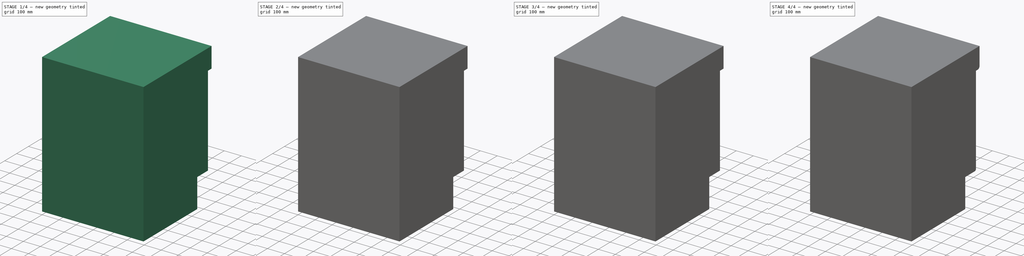
[diagram: build sequence overview — one tinted view per stage of 4, left to right]
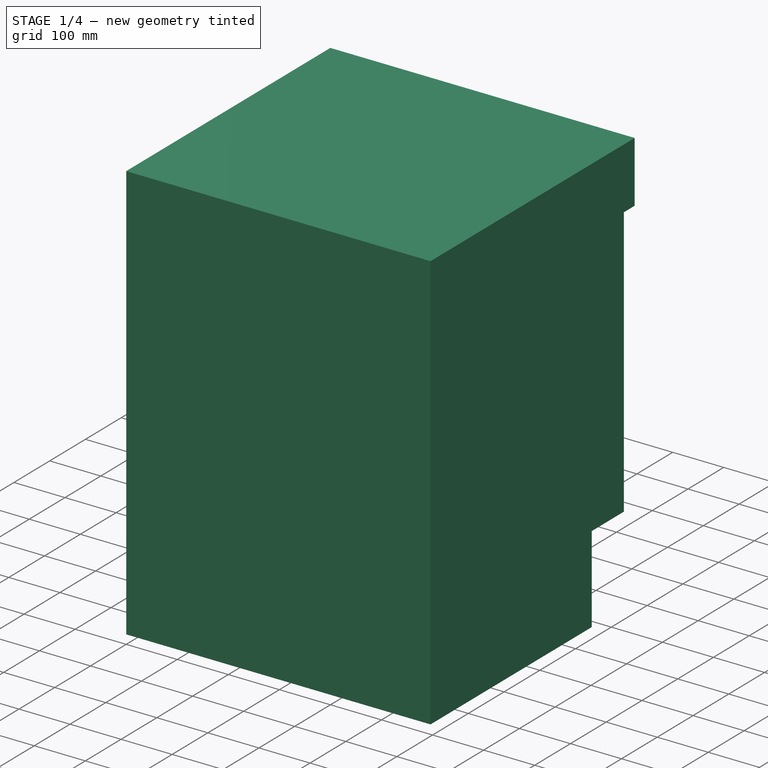
[diagram: stage 1 of 4 — iso view after this stage's code; geometry added in this stage tinted green]
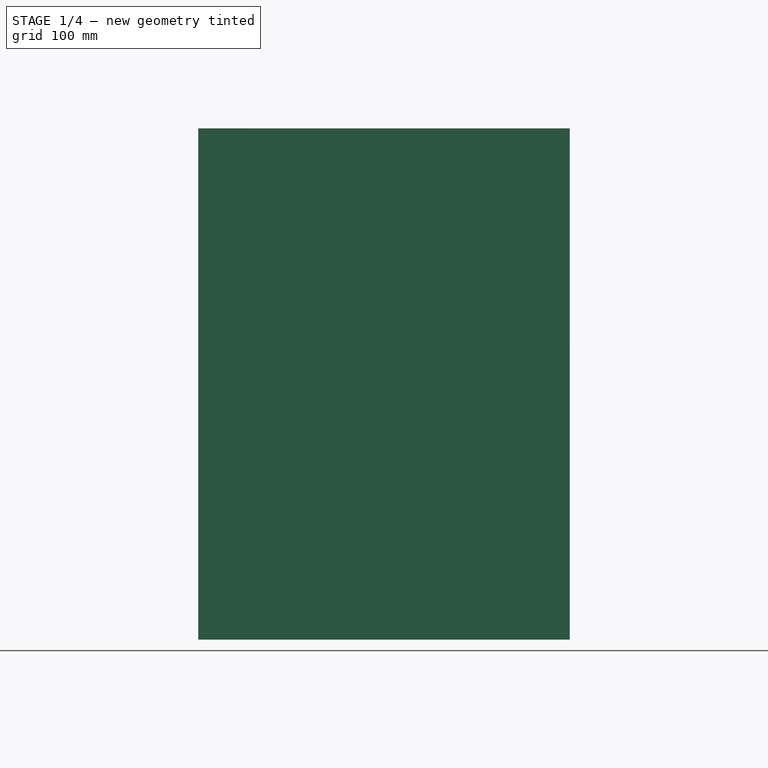
[diagram: stage 1 of 4 — front view after this stage's code; geometry added in this stage tinted green]
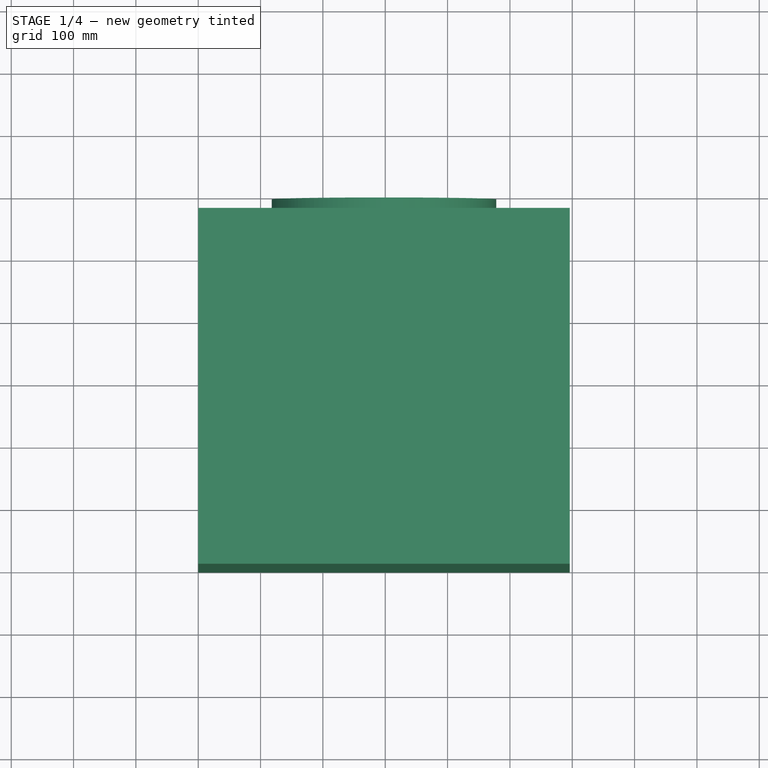
[diagram: stage 1 of 4 — top view after this stage's code; geometry added in this stage tinted green]
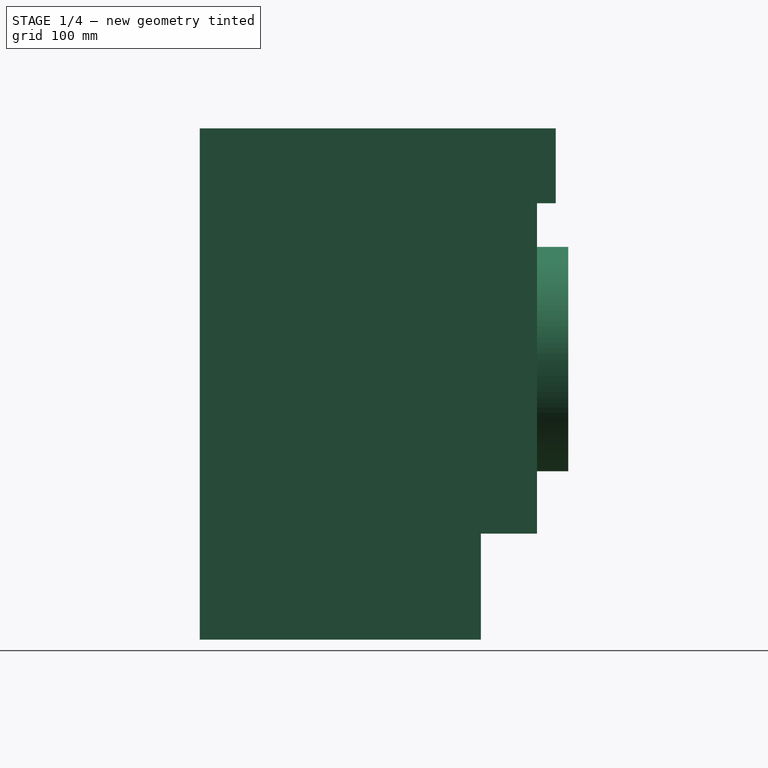
[diagram: stage 1 of 4 — right view after this stage's code; geometry added in this stage tinted green]
FCSTD DOCUMENT  (FreeCAD 0.18R16131 (Git))
Label: laundryMachine_600mm
License: All rights reserved
LicenseURL: http://en.wikipedia.org/wiki/All_rights_reserved
objects: Sketcher::SketchObject×7, PartDesign::Fillet×7, PartDesign::Pad×4, PartDesign::Pocket×3, PartDesign::Body×1
note: 29 computed .brp shape members not serialized (recipe doc carries the construction recipe); baked Part::Feature solids carry a one-line shape summary decoded from their .brp

FEATURE [Sketcher::SketchObject] Sketch
  MapMode = 5
  Support = -> [XY_Plane]
  sketch-geometry (4):
    g0: LineSegment StartX=0 StartY=0 StartZ=0 EndX=596 EndY=0 EndZ=0
    g1: LineSegment StartX=596 StartY=0 StartZ=0 EndX=596 EndY=541 EndZ=0
    g2: LineSegment StartX=596 StartY=541 StartZ=0 EndX=0 EndY=541 EndZ=0
    g3: LineSegment StartX=0 StartY=541 StartZ=0 EndX=0 EndY=0 EndZ=0
  constraints (11):
    c: Coincident(g0,g1)
    c: Coincident(g1,g2)
    c: Coincident(g2,g3)
    c: Coincident(g3,g0)
    c: Horizontal(g0)
    c: Horizontal(g2)
    c: Vertical(g1)
    c: Vertical(g3)
    c: Coincident(g0,g-1)
    c: DistanceY(g1,g1) = 541
    c: DistanceX(g0,g0) = 596
FEATURE [PartDesign::Pad] Pad
  Length = 820
  Length2 = 100
  Profile = -> Sketch
  Type = 0
FEATURE [Sketcher::SketchObject] Sketch001
  MapMode = 5
  Placement = pos=(0,541,0) rot=(0,0.707107,0.707107;3.14159rad)
  Support = -> [Pad]
  sketch-geometry (4):
    g0: LineSegment StartX=0 StartY=0 StartZ=0 EndX=-596 EndY=0 EndZ=0
    g1: LineSegment StartX=-596 StartY=0 StartZ=0 EndX=-596 EndY=170 EndZ=0
    g2: LineSegment StartX=-596 StartY=170 StartZ=0 EndX=0 EndY=170 EndZ=0
    g3: LineSegment StartX=0 StartY=170 StartZ=0 EndX=0 EndY=0 EndZ=0
  constraints (11):
    c: Coincident(g0,g1)
    c: Coincident(g1,g2)
    c: Coincident(g2,g3)
    c: Coincident(g3,g0)
    c: Horizontal(g0)
    c: Horizontal(g2)
    c: Vertical(g1)
    c: Vertical(g3)
    c: Coincident(g0,g-1)
    c: DistanceX(g0,g0) = 596
    c: DistanceY(g1,g1) = 170
FEATURE [PartDesign::Pocket] Pocket
  BaseFeature = -> Pad
  Length = 90
  Length2 = 100
  Profile = -> Sketch001
  Type = 0
FEATURE [Sketcher::SketchObject] Sketch002
  MapMode = 5
  Placement = pos=(0,541,0) rot=(0,0.707107,0.707107;3.14159rad)
  Support = -> [Pocket]
  sketch-geometry (1):
    g0: Circle CenterX=-298 CenterY=450 CenterZ=0 NormalX=0 NormalY=0 NormalZ=1 AngleXU=0 Radius=180
  constraints (3):
    c: Radius(g0) = 180
    c: DistanceX(g0) = -298
    c: DistanceY(g0) = 450
FEATURE [PartDesign::Pad] Pad001
  BaseFeature = -> Pocket
  Length = 50
  Length2 = 100
  Profile = -> Sketch002
  Type = 0
FEATURE [Sketcher::SketchObject] Sketch003
  MapMode = 5
  Placement = pos=(0,541,0) rot=(0,0.707107,0.707107;3.14159rad)
  Support = -> [Pad001]
  sketch-geometry (4):
    g0: LineSegment StartX=-596 StartY=820 StartZ=0 EndX=0 EndY=820 EndZ=0
    g1: LineSegment StartX=0 StartY=820 StartZ=0 EndX=0 EndY=700 EndZ=0
    g2: LineSegment StartX=0 StartY=700 StartZ=0 EndX=-596 EndY=700 EndZ=0
    g3: LineSegment StartX=-596 StartY=700 StartZ=0 EndX=-596 EndY=820 EndZ=0
  constraints (12):
    c: Coincident(g0,g1)
    c: Coincident(g1,g2)
    c: Coincident(g2,g3)
    c: Coincident(g3,g0)
    c: Horizontal(g0)
    c: Horizontal(g2)
    c: Vertical(g1)
    c: Vertical(g3)
    c: DistanceX(g2,g2) = 596
    c: DistanceY(g1,g1) = 120
    c: DistanceX(g1) = 0
    c: DistanceY(g1) = 700
FEATURE [PartDesign::Pad] Pad002
  BaseFeature = -> Pad001
  Length = 30
  Length2 = 100
  Profile = -> Sketch003
  Type = 0
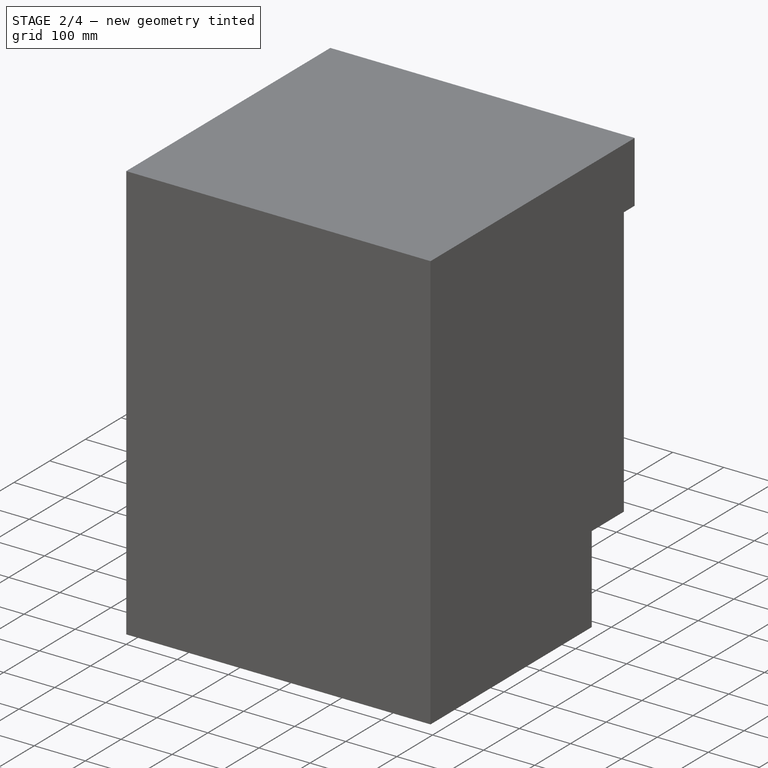
[diagram: stage 2 of 4 — iso view after this stage's code; geometry added in this stage tinted green]
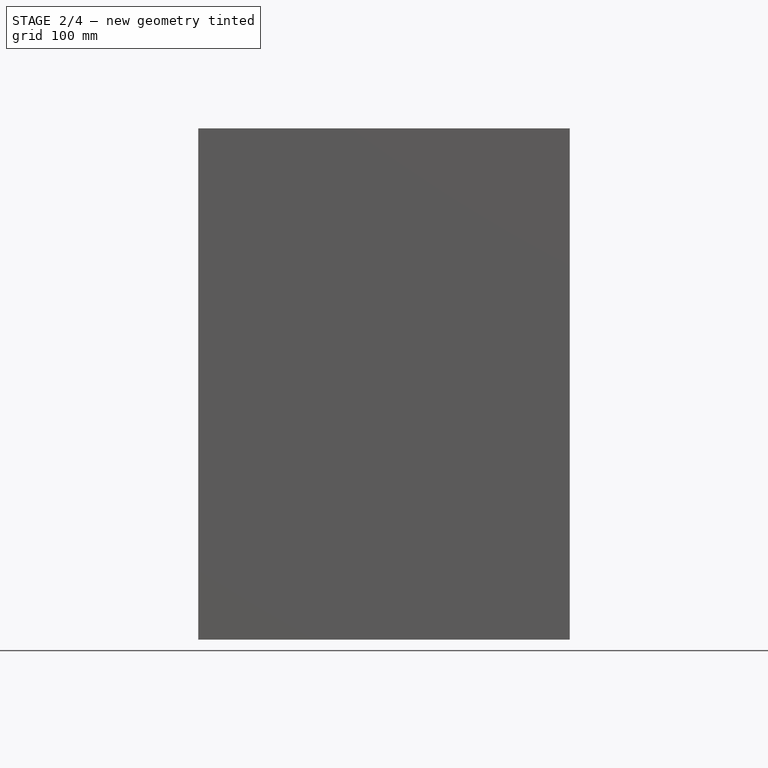
[diagram: stage 2 of 4 — front view after this stage's code; geometry added in this stage tinted green]
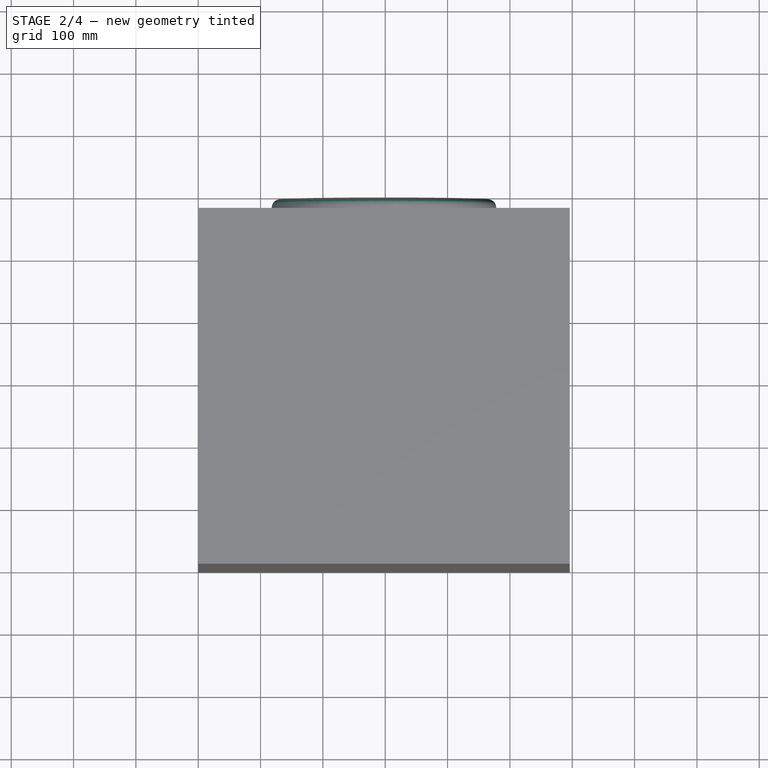
[diagram: stage 2 of 4 — top view after this stage's code; geometry added in this stage tinted green]
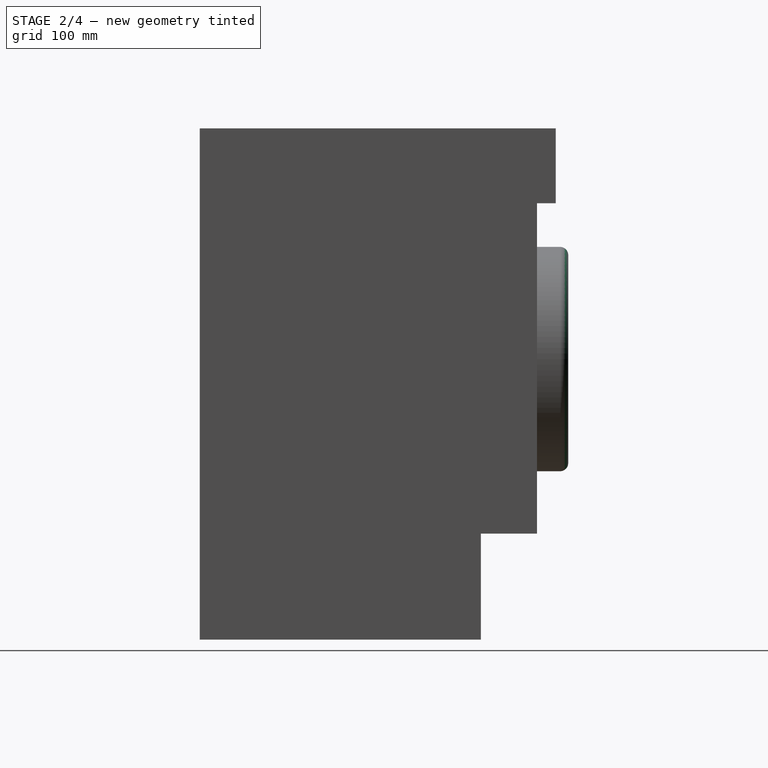
[diagram: stage 2 of 4 — right view after this stage's code; geometry added in this stage tinted green]
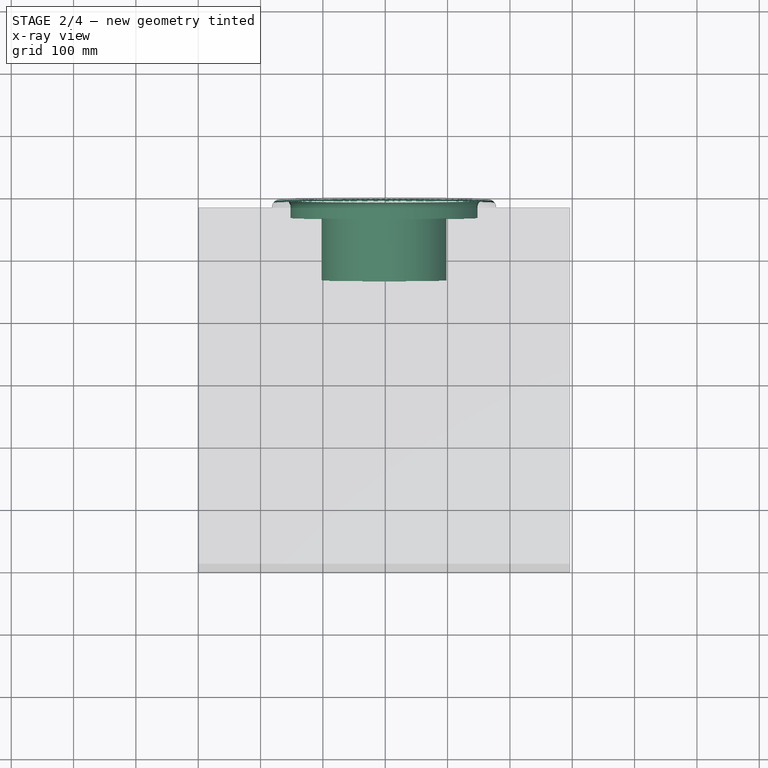
[diagram: stage 2 of 4 — x-ray composite at the top view; earlier geometry ghosted, this stage's added geometry solid]
FEATURE [Sketcher::SketchObject] Sketch004
  MapMode = 5
  Placement = pos=(0,591,0) rot=(0,0.707107,0.707107;3.14159rad)
  Support = -> [Pad002]
  sketch-geometry (1):
    g0: Circle CenterX=-298 CenterY=450 CenterZ=0 NormalX=0 NormalY=0 NormalZ=1 AngleXU=0 Radius=150
  constraints (3):
    c: Radius(g0) = 150
    c: DistanceX(g0) = -298
    c: DistanceY(g0) = 450
FEATURE [PartDesign::Pocket] Pocket001
  BaseFeature = -> Pad002
  Length = 30
  Length2 = 100
  Profile = -> Sketch004
  Type = 0
FEATURE [PartDesign::Fillet] Fillet
  Base = -> Pocket001 [Face15]
  BaseFeature = -> Pocket001
  Radius = 13
FEATURE [Sketcher::SketchObject] Sketch005
  MapMode = 5
  Placement = pos=(0,561,0) rot=(0,0.707107,0.707107;3.14159rad)
  Support = -> [Fillet]
  sketch-geometry (1):
    g0: Circle CenterX=-298 CenterY=450 CenterZ=0 NormalX=0 NormalY=0 NormalZ=1 AngleXU=0 Radius=100
  constraints (3):
    c: Radius(g0) = 100
    c: DistanceX(g0) = -298
    c: DistanceY(g0) = 450
FEATURE [PartDesign::Pocket] Pocket002
  BaseFeature = -> Fillet
  Length = 100
  Length2 = 100
  Profile = -> Sketch005
  Type = 0
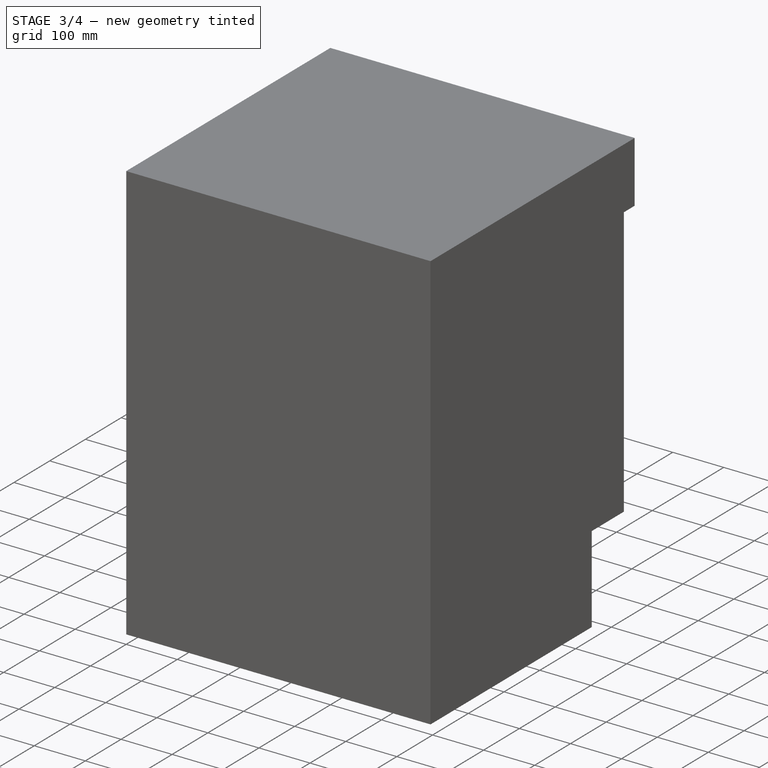
[diagram: stage 3 of 4 — iso view after this stage's code; geometry added in this stage tinted green]
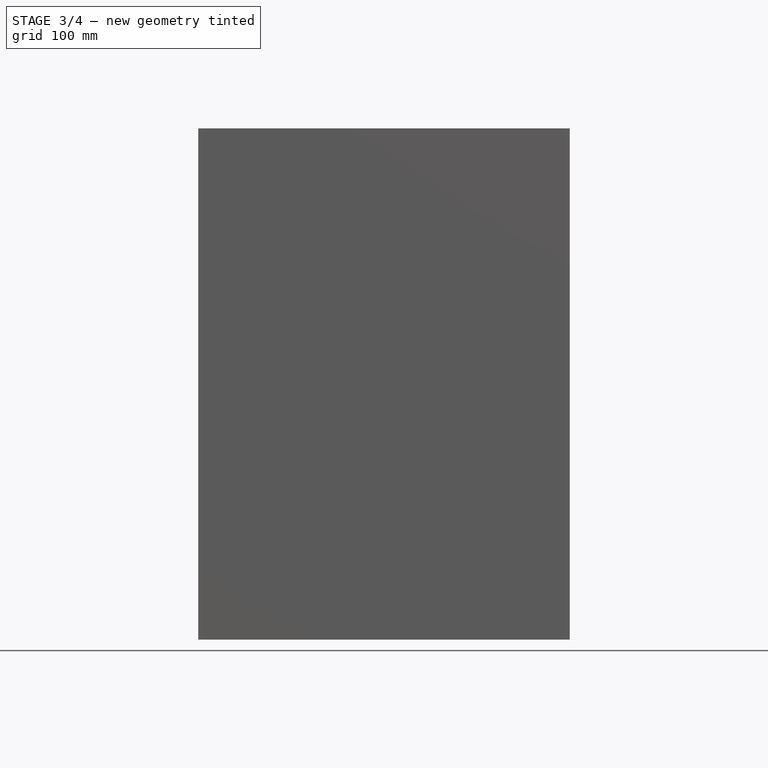
[diagram: stage 3 of 4 — front view after this stage's code; geometry added in this stage tinted green]
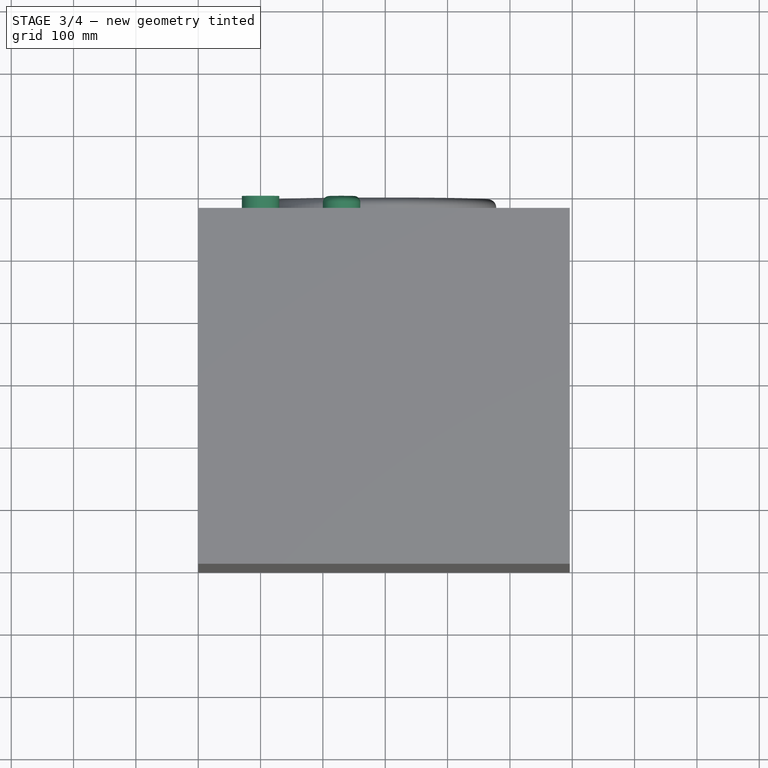
[diagram: stage 3 of 4 — top view after this stage's code; geometry added in this stage tinted green]
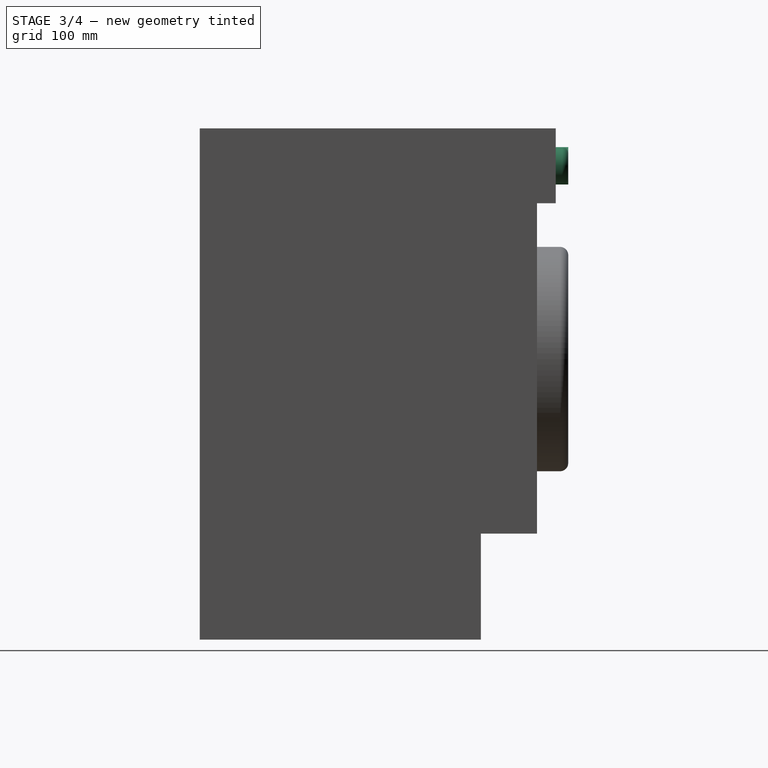
[diagram: stage 3 of 4 — right view after this stage's code; geometry added in this stage tinted green]
FEATURE [PartDesign::Fillet] Fillet001
  Base = -> Pocket002 [Edge40]
  BaseFeature = -> Pocket002
  Radius = 35
FEATURE [Sketcher::SketchObject] Sketch006
  MapMode = 5
  Placement = pos=(0,571,-5.424e-13) rot=(0,0.707107,0.707107;3.14159rad)
  Support = -> [Fillet001]
  sketch-geometry (2):
    g0: Circle CenterX=-100 CenterY=760 CenterZ=0 NormalX=0 NormalY=0 NormalZ=1 AngleXU=0 Radius=30
    g1: Circle CenterX=-230 CenterY=760 CenterZ=0 NormalX=0 NormalY=0 NormalZ=1 AngleXU=0 Radius=30
  constraints (6):
    c: Radius(g0) = 30
    c: DistanceX(g0) = -100
    c: DistanceY(g0) = 760
    c: Equal(g1,g0)
    c: DistanceY(g1) = 760
    c: DistanceX(g1) = -230
FEATURE [PartDesign::Pad] Pad003
  BaseFeature = -> Fillet001
  Length = 20
  Length2 = 100
  Profile = -> Sketch006
  Type = 0
FEATURE [PartDesign::Fillet] Fillet002
  Base = -> Pad003 [Edge48]
  BaseFeature = -> Pad003
  Radius = 10
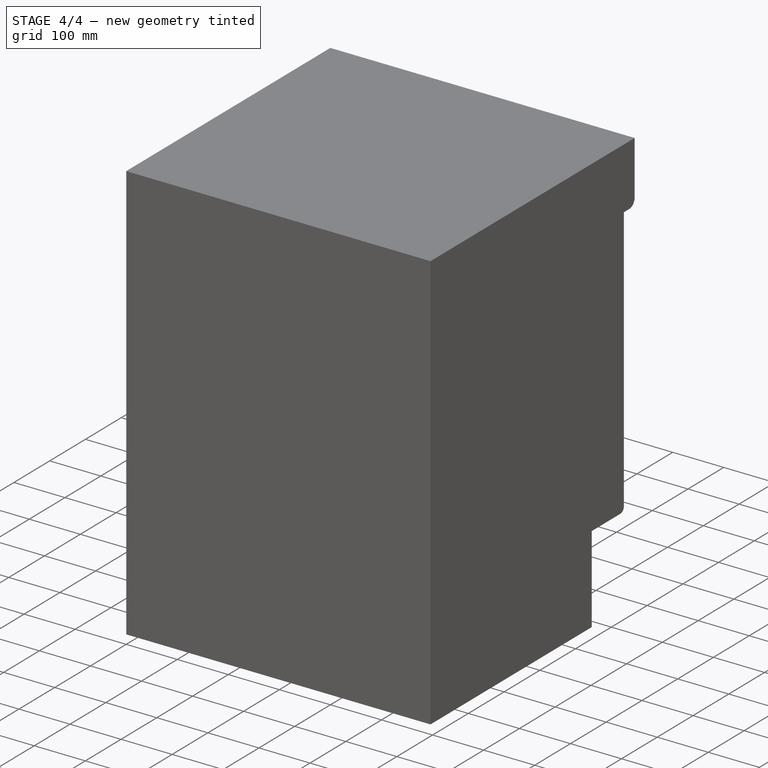
[diagram: stage 4 of 4 — iso view after this stage's code; geometry added in this stage tinted green]
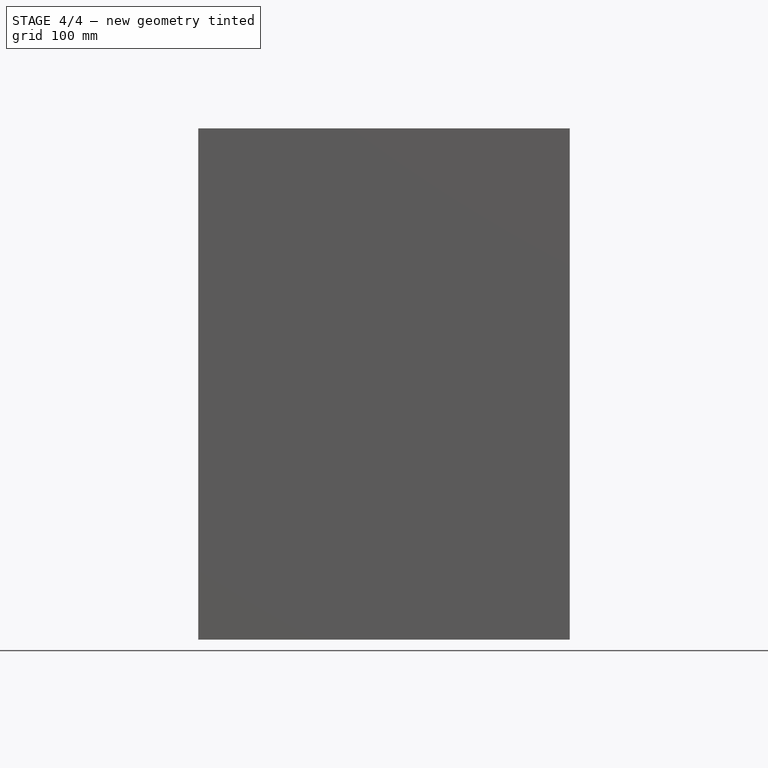
[diagram: stage 4 of 4 — front view after this stage's code; geometry added in this stage tinted green]
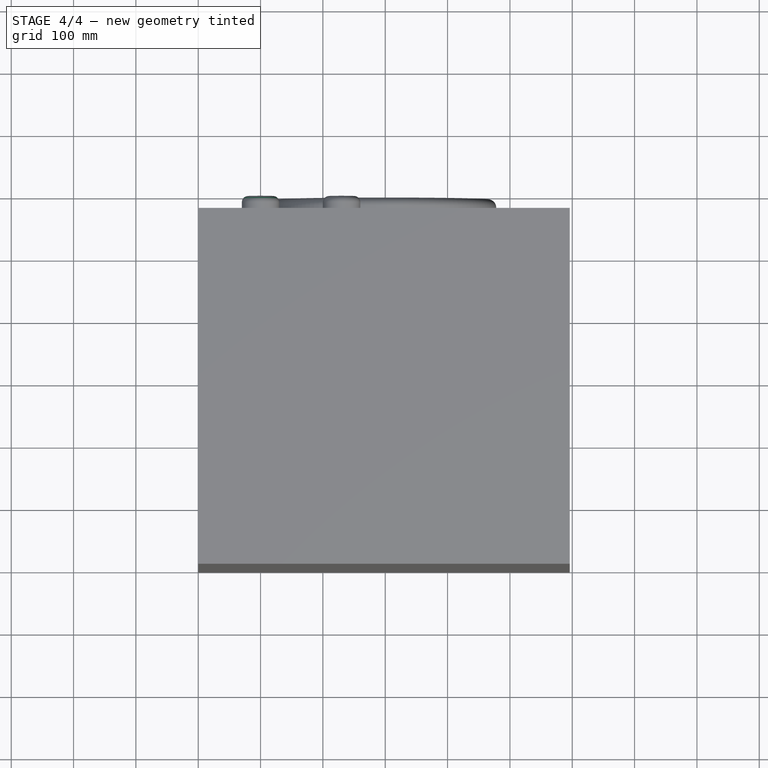
[diagram: stage 4 of 4 — top view after this stage's code; geometry added in this stage tinted green]
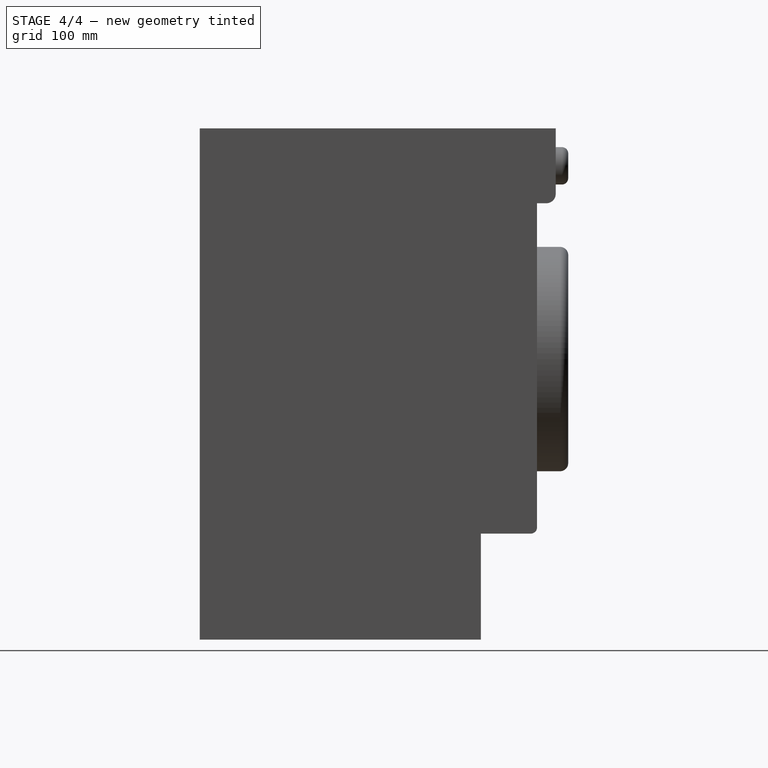
[diagram: stage 4 of 4 — right view after this stage's code; geometry added in this stage tinted green]
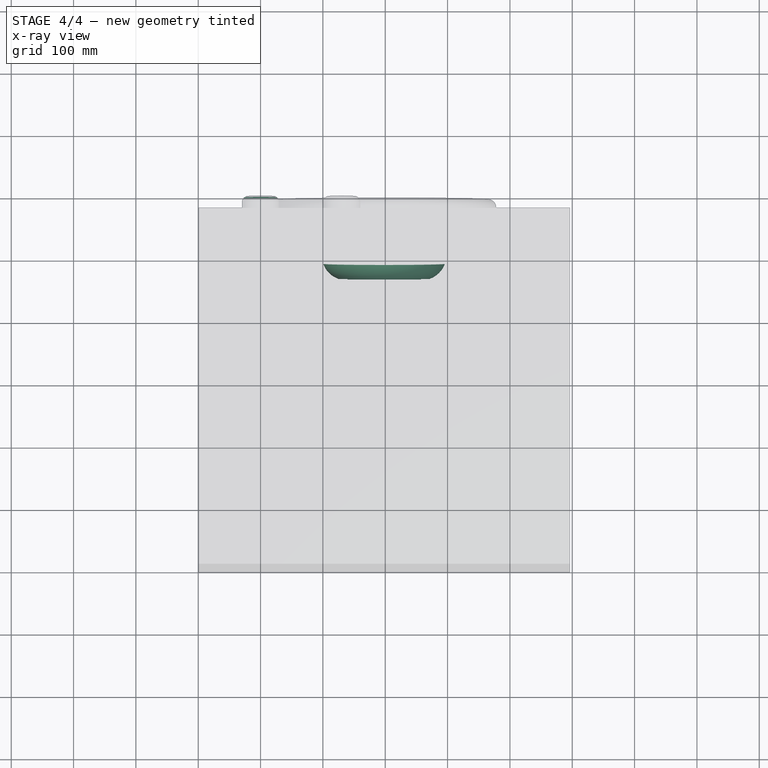
[diagram: stage 4 of 4 — x-ray composite at the top view; earlier geometry ghosted, this stage's added geometry solid]
FEATURE [PartDesign::Fillet] Fillet003
  Base = -> Fillet002 [Edge20]
  BaseFeature = -> Fillet002
  Radius = 10
FEATURE [PartDesign::Fillet] Fillet004
  Base = -> Fillet003 [Edge9]
  BaseFeature = -> Fillet003
  Radius = 15
FEATURE [PartDesign::Fillet] Fillet005
  Base = -> Fillet004 [Face29]
  BaseFeature = -> Fillet004
  Radius = 40
FEATURE [PartDesign::Fillet] Fillet006
  Base = -> Fillet005 [Edge18]
  BaseFeature = -> Fillet005
  Radius = 10
FEATURE [PartDesign::Body] Body  label="LaundryMachine_600mm"
  Group = -> [Sketch,Pad,Sketch001,Pocket,Sketch002,Pad001,Sketch003,Pad002,Sketch004,Pocket001,Fillet,Sketch005,Pocket002,Fillet001,Sketch006,Pad003,Fillet002,Fillet003,Fillet004,Fillet005,Fillet006]
  Origin = -> Origin
  Tip = -> Fillet006
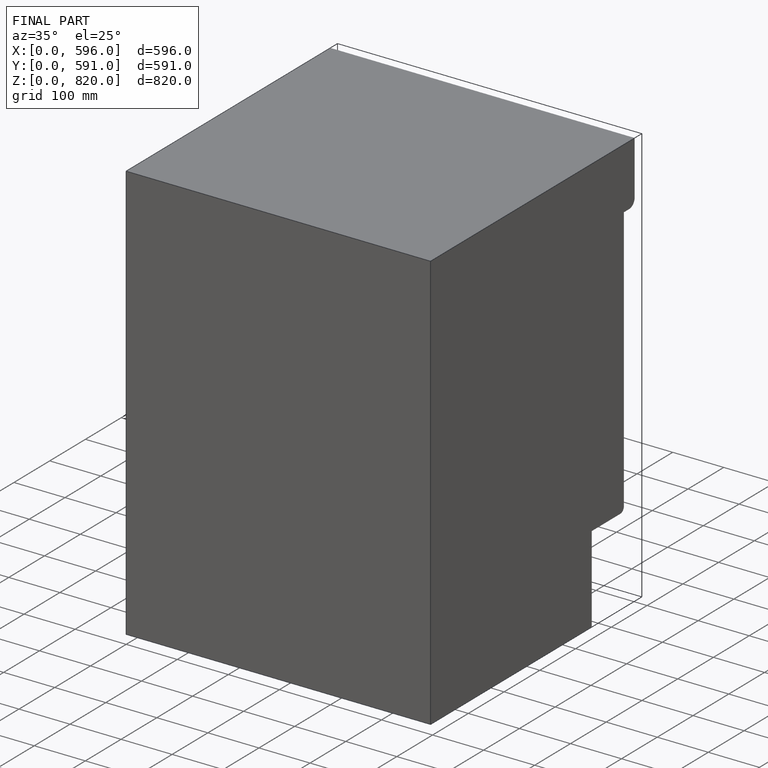
[diagram: finished part — iso view with bounding-box wireframe]
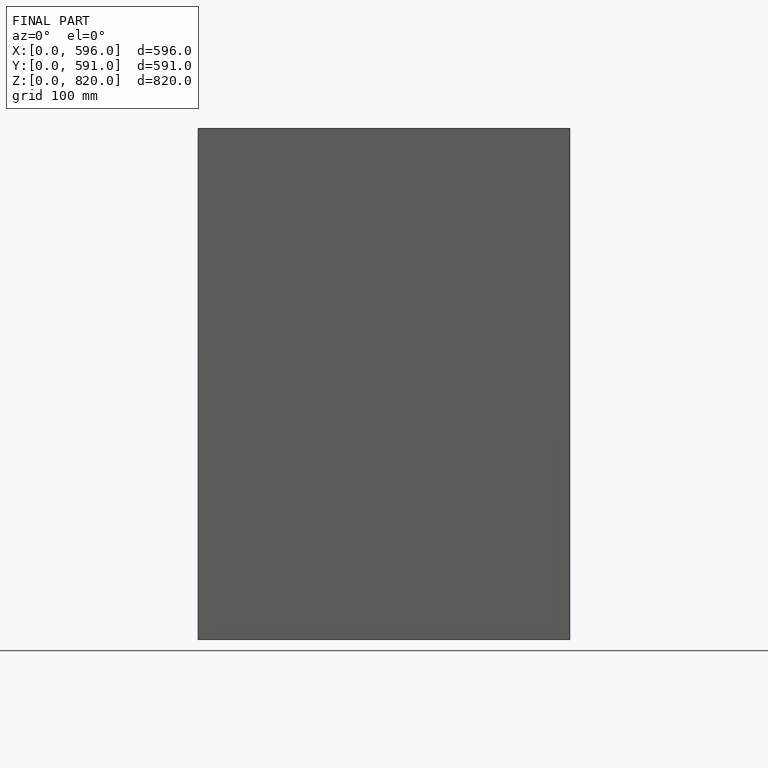
[diagram: finished part — front view with bounding-box wireframe]
